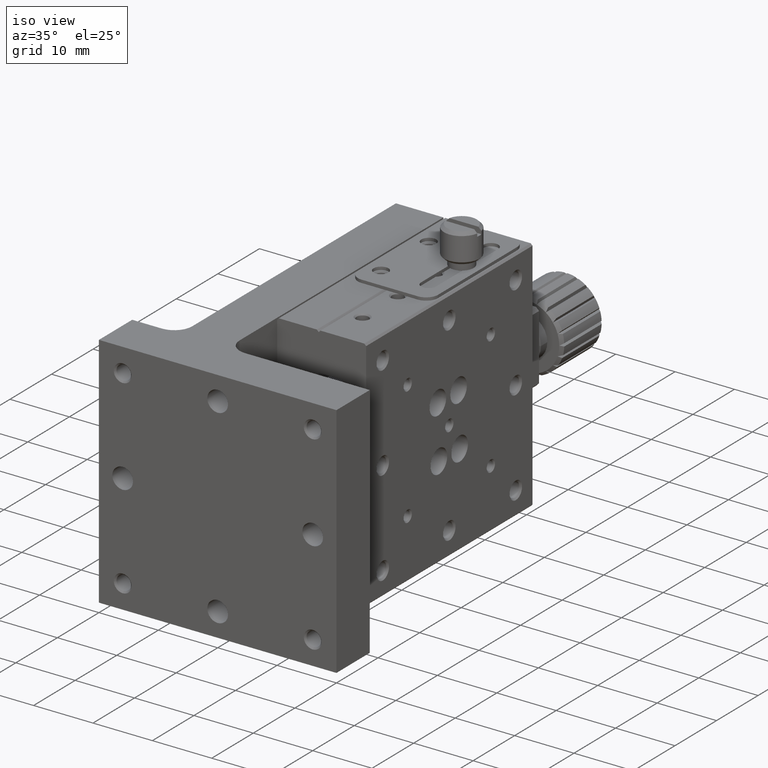
[diagram: clean part render]
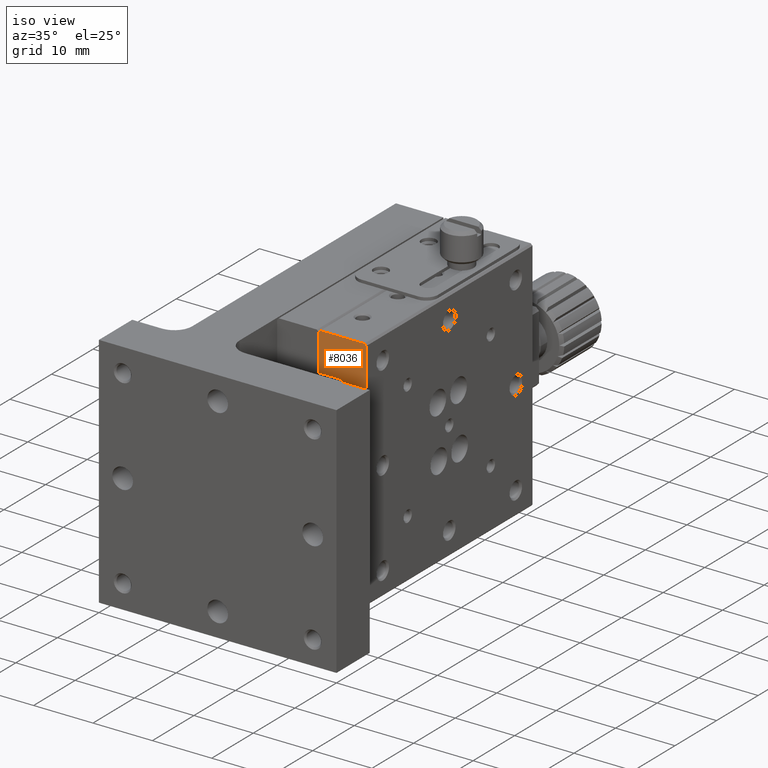
[diagram: same view with one face highlighted and labeled with its STEP entity id]
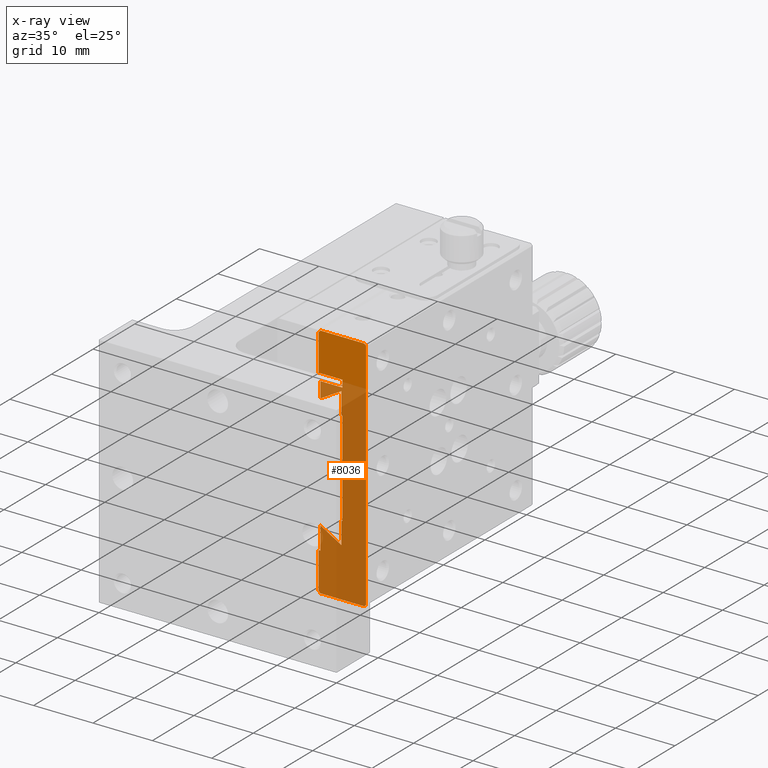
[diagram: x-ray of the same camera — body ghosted, the highlighted face saturated]
A machine part, iso view. The second image highlights one B-rep face of the part: STEP entity #8036.
The next image is the same camera in x-ray: the body ghosted, the highlighted face saturated — about 77% of this face is hidden behind the body in this view.
In plain terms, the highlighted planar face has unit normal (0, -1, 0).
Its self-contained STEP definition (entity closure, byte-faithful):
#23 = ORIENTED_EDGE ( 'NONE', *, *, #4908, .T. ) ;
#66 = VERTEX_POINT ( 'NONE', #1497 ) ;
#71 = CARTESIAN_POINT ( 'NONE',  ( 23.00000000000000000, 19.99999999999999645, 4.898587196589409870E-15 ) ) ;
#97 = LINE ( 'NONE', #1052, #6475 ) ;
#134 = EDGE_CURVE ( 'NONE', #2154, #9276, #6718, .T. ) ;
#180 = DIRECTION ( 'NONE',  ( 0.000000000000000000, 0.000000000000000000, -1.000000000000000000 ) ) ;
#186 = CARTESIAN_POINT ( 'NONE',  ( 26.80000000000001137, 19.99999999999999645, -31.69399999999999196 ) ) ;
#197 = DIRECTION ( 'NONE',  ( 0.000000000000000000, 0.000000000000000000, -1.000000000000000000 ) ) ;
#232 = CARTESIAN_POINT ( 'NONE',  ( 27.00000000000000000, 19.99999999999999645, -11.99999999999999467 ) ) ;
#239 = DIRECTION ( 'NONE',  ( -0.000000000000000000, -0.000000000000000000, -1.000000000000000000 ) ) ;
#257 = CARTESIAN_POINT ( 'NONE',  ( 23.30000000000000782, 19.99999999999999645, -33.49999999999999289 ) ) ;
#286 = LINE ( 'NONE', #4331, #9709 ) ;
#309 = CARTESIAN_POINT ( 'NONE',  ( 26.80000000000000426, 19.99999999999999645, -8.305999999999988503 ) ) ;
#344 = VECTOR ( 'NONE', #5239, 999.9999999999998863 ) ;
#393 = EDGE_CURVE ( 'NONE', #3789, #7237, #5539, .T. ) ;
#515 = DIRECTION ( 'NONE',  ( 0.000000000000000000, 0.000000000000000000, -1.000000000000000000 ) ) ;
#646 = DIRECTION ( 'NONE',  ( -0.7071067811865470176, -0.000000000000000000, 0.7071067811865480168 ) ) ;
#712 = EDGE_CURVE ( 'NONE', #8291, #806, #8954, .T. ) ;
#737 = CARTESIAN_POINT ( 'NONE',  ( 22.99999999999999289, 19.99999999999999645, -39.70000000000000284 ) ) ;
#756 = LINE ( 'NONE', #71, #1780 ) ;
#793 = ORIENTED_EDGE ( 'NONE', *, *, #9767, .T. ) ;
#806 = VERTEX_POINT ( 'NONE', #1158 ) ;
#938 = PLANE ( 'NONE',  #7580 ) ;
#978 = CARTESIAN_POINT ( 'NONE',  ( 23.30000000000000782, 19.99999999999999645, 4.898587196589409870E-15 ) ) ;
#1052 = CARTESIAN_POINT ( 'NONE',  ( 23.30000000000000782, 19.99999999999999645, -8.369289483269090134E-15 ) ) ;
#1089 = VERTEX_POINT ( 'NONE', #7095 ) ;
#1093 = DIRECTION ( 'NONE',  ( 0.000000000000000000, -1.000000000000000000, 0.000000000000000000 ) ) ;
#1158 = CARTESIAN_POINT ( 'NONE',  ( 27.00000000000000000, 19.99999999999999645, -27.99999999999999645 ) ) ;
#1203 = EDGE_CURVE ( 'NONE', #10058, #8235, #4131, .T. ) ;
#1283 = EDGE_CURVE ( 'NONE', #7774, #2154, #2175, .T. ) ;
#1497 = CARTESIAN_POINT ( 'NONE',  ( 30.99999999999999289, 19.99999999999999645, -39.69999999999999574 ) ) ;
#1757 = DIRECTION ( 'NONE',  ( 0.000000000000000000, 0.000000000000000000, -1.000000000000000000 ) ) ;
#1780 = VECTOR ( 'NONE', #180, 1000.000000000000000 ) ;
#1823 = VERTEX_POINT ( 'NONE', #10283 ) ;
#2029 = CARTESIAN_POINT ( 'NONE',  ( 22.99999999999998934, 19.99999999999999645, -39.69999999999999574 ) ) ;
#2120 = VERTEX_POINT ( 'NONE', #8517 ) ;
#2122 = DIRECTION ( 'NONE',  ( 1.000000000000000000, 0.000000000000000000, 0.000000000000000000 ) ) ;
#2154 = VERTEX_POINT ( 'NONE', #8464 ) ;
#2175 = LINE ( 'NONE', #10356, #7629 ) ;
#2304 = VERTEX_POINT ( 'NONE', #7121 ) ;
#2648 = ORIENTED_EDGE ( 'NONE', *, *, #5600, .T. ) ;
#2683 = VECTOR ( 'NONE', #2973, 1000.000000000000000 ) ;
#2709 = EDGE_CURVE ( 'NONE', #6435, #3789, #3008, .T. ) ;
#2723 = FACE_OUTER_BOUND ( 'NONE', #5894, .T. ) ;
#2791 = VECTOR ( 'NONE', #8409, 1000.000000000000000 ) ;
#2973 = DIRECTION ( 'NONE',  ( 0.000000000000000000, 0.000000000000000000, -1.000000000000000000 ) ) ;
#3008 = LINE ( 'NONE', #6224, #7995 ) ;
#3066 = DIRECTION ( 'NONE',  ( -1.000000000000000000, -0.000000000000000000, -0.000000000000000000 ) ) ;
#3212 = ORIENTED_EDGE ( 'NONE', *, *, #4335, .T. ) ;
#3216 = EDGE_CURVE ( 'NONE', #7237, #2304, #97, .T. ) ;
#3315 = VECTOR ( 'NONE', #8539, 1000.000000000000000 ) ;
#3406 = EDGE_CURVE ( 'NONE', #8235, #4358, #8364, .T. ) ;
#3416 = VERTEX_POINT ( 'NONE', #309 ) ;
#3421 = VECTOR ( 'NONE', #4652, 1000.000000000000114 ) ;
#3493 = DIRECTION ( 'NONE',  ( -1.000000000000000000, -0.000000000000000000, -0.000000000000000000 ) ) ;
#3574 = CARTESIAN_POINT ( 'NONE',  ( 23.30000000000000782, 19.99999999999999645, -10.32699999999999463 ) ) ;
#3619 = CARTESIAN_POINT ( 'NONE',  ( 23.30000000000000782, 19.99999999999999645, -7.699999999999994849 ) ) ;
#3629 = VERTEX_POINT ( 'NONE', #4122 ) ;
#3786 = CARTESIAN_POINT ( 'NONE',  ( 30.99999999999999645, 19.99999999999999645, -39.69999999999999574 ) ) ;
#3789 = VERTEX_POINT ( 'NONE', #5233 ) ;
#3906 = EDGE_CURVE ( 'NONE', #2304, #7774, #756, .T. ) ;
#3907 = CARTESIAN_POINT ( 'NONE',  ( 23.30000000000000782, 19.99999999999999645, -8.426049579347532946E-15 ) ) ;
#3914 = ORIENTED_EDGE ( 'NONE', *, *, #3918, .T. ) ;
#3918 = EDGE_CURVE ( 'NONE', #2120, #8587, #7287, .T. ) ;
#4091 = DIRECTION ( 'NONE',  ( 0.000000000000000000, 0.000000000000000000, -1.000000000000000000 ) ) ;
#4119 = VECTOR ( 'NONE', #8923, 1000.000000000000000 ) ;
#4122 = CARTESIAN_POINT ( 'NONE',  ( 26.80000000000001137, 19.99999999999999645, -27.99999999999999645 ) ) ;
#4131 = LINE ( 'NONE', #9793, #3421 ) ;
#4140 = CARTESIAN_POINT ( 'NONE',  ( 23.30000000000000782, 19.99999999999999645, -10.32699999999999463 ) ) ;
#4175 = LINE ( 'NONE', #978, #8072 ) ;
#4242 = LINE ( 'NONE', #9902, #7229 ) ;
#4249 = DIRECTION ( 'NONE',  ( -0.7071067811865470176, -0.000000000000000000, -0.7071067811865480168 ) ) ;
#4271 = ORIENTED_EDGE ( 'NONE', *, *, #134, .T. ) ;
#4331 = CARTESIAN_POINT ( 'NONE',  ( 31.00000000000000000, 19.99999999999999645, -7.699999999999994849 ) ) ;
#4335 = EDGE_CURVE ( 'NONE', #9140, #3416, #9062, .T. ) ;
#4347 = ORIENTED_EDGE ( 'NONE', *, *, #2709, .T. ) ;
#4351 = VECTOR ( 'NONE', #5092, 1000.000000000000000 ) ;
#4358 = VERTEX_POINT ( 'NONE', #257 ) ;
#4402 = ORIENTED_EDGE ( 'NONE', *, *, #3216, .T. ) ;
#4652 = DIRECTION ( 'NONE',  ( -0.8659960399471572368, 0.000000000000000000, 0.5000508562094874154 ) ) ;
#4740 = CARTESIAN_POINT ( 'NONE',  ( 26.80000000000001137, 19.99999999999999645, -11.99999999999999467 ) ) ;
#4776 = ORIENTED_EDGE ( 'NONE', *, *, #1283, .T. ) ;
#4786 = CARTESIAN_POINT ( 'NONE',  ( 27.00000000000000000, 19.99999999999999645, 4.898587196589409870E-15 ) ) ;
#4847 = ORIENTED_EDGE ( 'NONE', *, *, #10081, .T. ) ;
#4869 = VECTOR ( 'NONE', #10302, 1000.000000000000000 ) ;
#4908 = EDGE_CURVE ( 'NONE', #1823, #5034, #6766, .T. ) ;
#4946 = EDGE_CURVE ( 'NONE', #806, #3629, #9641, .T. ) ;
#4988 = CARTESIAN_POINT ( 'NONE',  ( 31.00000000000000000, 19.99999999999999645, 4.898587196589409870E-15 ) ) ;
#4995 = DIRECTION ( 'NONE',  ( 0.8659960399471574588, 0.000000000000000000, 0.5000508562094870824 ) ) ;
#5034 = VERTEX_POINT ( 'NONE', #737 ) ;
#5092 = DIRECTION ( 'NONE',  ( -1.000000000000000000, -0.000000000000000000, -0.000000000000000000 ) ) ;
#5130 = CARTESIAN_POINT ( 'NONE',  ( 27.00000000000000000, 19.99999999999999645, -6.500000000000005329 ) ) ;
#5156 = ORIENTED_EDGE ( 'NONE', *, *, #8244, .T. ) ;
#5233 = CARTESIAN_POINT ( 'NONE',  ( 30.69999999999998863, 19.99999999999999645, -9.333192620541544361E-15 ) ) ;
#5239 = DIRECTION ( 'NONE',  ( 0.7071067811865510144, -0.000000000000000000, -0.7071067811865441310 ) ) ;
#5296 = ORIENTED_EDGE ( 'NONE', *, *, #4946, .T. ) ;
#5407 = VECTOR ( 'NONE', #239, 1000.000000000000000 ) ;
#5516 = DIRECTION ( 'NONE',  ( -1.000000000000000000, -0.000000000000000000, -0.000000000000000000 ) ) ;
#5539 = LINE ( 'NONE', #8863, #5921 ) ;
#5600 = EDGE_CURVE ( 'NONE', #9276, #9135, #286, .T. ) ;
#5894 = EDGE_LOOP ( 'NONE', ( #9119, #4347, #9504, #4402, #7929, #4776, #4271, #2648, #8646, #3212, #8333, #9557, #7754, #5296, #793, #7206, #8467, #8488, #23, #5156, #3914, #4847 ) ) ;
#5921 = VECTOR ( 'NONE', #3066, 1000.000000000000000 ) ;
#5928 = VECTOR ( 'NONE', #4091, 1000.000000000000000 ) ;
#6188 = EDGE_CURVE ( 'NONE', #66, #6435, #7703, .T. ) ;
#6224 = CARTESIAN_POINT ( 'NONE',  ( 31.00000000000000000, 19.99999999999999645, -0.3000000000000211942 ) ) ;
#6231 = CARTESIAN_POINT ( 'NONE',  ( 30.69999999999998508, 19.99999999999999645, -39.99999999999999289 ) ) ;
#6298 = CARTESIAN_POINT ( 'NONE',  ( 27.00000000000000000, 19.99999999999999645, -7.699999999999994849 ) ) ;
#6435 = VERTEX_POINT ( 'NONE', #7379 ) ;
#6475 = VECTOR ( 'NONE', #4249, 1000.000000000000000 ) ;
#6673 = CARTESIAN_POINT ( 'NONE',  ( 23.30000000000000782, 19.99999999999999645, -33.49999999999999289 ) ) ;
#6675 = DIRECTION ( 'NONE',  ( 0.000000000000000000, 0.000000000000000000, -1.000000000000000000 ) ) ;
#6718 = LINE ( 'NONE', #5130, #5407 ) ;
#6766 = LINE ( 'NONE', #9198, #2791 ) ;
#6823 = CARTESIAN_POINT ( 'NONE',  ( 23.30000000000000426, 19.99999999999999645, -29.67300000000000182 ) ) ;
#6940 = CARTESIAN_POINT ( 'NONE',  ( 23.00000000000000000, 19.99999999999999645, -6.500000000000005329 ) ) ;
#7055 = CARTESIAN_POINT ( 'NONE',  ( 27.00000000000000000, 19.99999999999999645, -27.99999999999999645 ) ) ;
#7095 = CARTESIAN_POINT ( 'NONE',  ( 26.80000000000001137, 19.99999999999999645, -11.99999999999999467 ) ) ;
#7121 = CARTESIAN_POINT ( 'NONE',  ( 23.00000000000000000, 19.99999999999999645, -0.3000000000000199174 ) ) ;
#7206 = ORIENTED_EDGE ( 'NONE', *, *, #1203, .T. ) ;
#7229 = VECTOR ( 'NONE', #197, 1000.000000000000000 ) ;
#7237 = VERTEX_POINT ( 'NONE', #3907 ) ;
#7287 = LINE ( 'NONE', #8190, #4119 ) ;
#7379 = CARTESIAN_POINT ( 'NONE',  ( 30.99999999999999645, 19.99999999999999645, -0.3000000000000154210 ) ) ;
#7508 = VECTOR ( 'NONE', #515, 1000.000000000000000 ) ;
#7580 = AXIS2_PLACEMENT_3D ( 'NONE', #4988, #1093, #6675 ) ;
#7629 = VECTOR ( 'NONE', #2122, 1000.000000000000000 ) ;
#7663 = LINE ( 'NONE', #6231, #10436 ) ;
#7703 = LINE ( 'NONE', #3786, #3315 ) ;
#7754 = ORIENTED_EDGE ( 'NONE', *, *, #712, .T. ) ;
#7774 = VERTEX_POINT ( 'NONE', #6940 ) ;
#7929 = ORIENTED_EDGE ( 'NONE', *, *, #3906, .T. ) ;
#7973 = LINE ( 'NONE', #4740, #4869 ) ;
#7995 = VECTOR ( 'NONE', #646, 1000.000000000000000 ) ;
#8023 = EDGE_CURVE ( 'NONE', #3416, #1089, #4242, .T. ) ;
#8036 = ADVANCED_FACE ( 'NONE', ( #2723 ), #938, .T. ) ;
#8072 = VECTOR ( 'NONE', #1757, 1000.000000000000000 ) ;
#8190 = CARTESIAN_POINT ( 'NONE',  ( 31.00000000000000000, 19.99999999999999645, -39.99999999999999289 ) ) ;
#8235 = VERTEX_POINT ( 'NONE', #6823 ) ;
#8244 = EDGE_CURVE ( 'NONE', #5034, #2120, #9260, .T. ) ;
#8291 = VERTEX_POINT ( 'NONE', #232 ) ;
#8333 = ORIENTED_EDGE ( 'NONE', *, *, #8023, .T. ) ;
#8356 = LINE ( 'NONE', #6673, #4351 ) ;
#8364 = LINE ( 'NONE', #10117, #7508 ) ;
#8409 = DIRECTION ( 'NONE',  ( 0.000000000000000000, 0.000000000000000000, -1.000000000000000000 ) ) ;
#8464 = CARTESIAN_POINT ( 'NONE',  ( 27.00000000000000000, 19.99999999999999645, -6.500000000000005329 ) ) ;
#8467 = ORIENTED_EDGE ( 'NONE', *, *, #3406, .T. ) ;
#8488 = ORIENTED_EDGE ( 'NONE', *, *, #9552, .T. ) ;
#8517 = CARTESIAN_POINT ( 'NONE',  ( 23.30000000000000426, 19.99999999999999645, -40.00000000000000000 ) ) ;
#8539 = DIRECTION ( 'NONE',  ( 1.230518249841690057E-16, 0.000000000000000000, 1.000000000000000000 ) ) ;
#8562 = CARTESIAN_POINT ( 'NONE',  ( 26.80000000000001137, 19.99999999999999645, 4.898587196589409870E-15 ) ) ;
#8587 = VERTEX_POINT ( 'NONE', #8911 ) ;
#8602 = DIRECTION ( 'NONE',  ( 0.7071067811865680008, 0.000000000000000000, 0.7071067811865270336 ) ) ;
#8646 = ORIENTED_EDGE ( 'NONE', *, *, #9988, .T. ) ;
#8863 = CARTESIAN_POINT ( 'NONE',  ( 31.00000000000000000, 19.99999999999999645, -9.250251154346389072E-15 ) ) ;
#8911 = CARTESIAN_POINT ( 'NONE',  ( 30.69999999999998508, 19.99999999999999645, -39.99999999999999289 ) ) ;
#8923 = DIRECTION ( 'NONE',  ( 1.000000000000000000, 0.000000000000000000, 0.000000000000000000 ) ) ;
#8954 = LINE ( 'NONE', #4786, #5928 ) ;
#9033 = VECTOR ( 'NONE', #4995, 1000.000000000000114 ) ;
#9062 = LINE ( 'NONE', #4140, #9033 ) ;
#9119 = ORIENTED_EDGE ( 'NONE', *, *, #6188, .T. ) ;
#9135 = VERTEX_POINT ( 'NONE', #3619 ) ;
#9140 = VERTEX_POINT ( 'NONE', #3574 ) ;
#9198 = CARTESIAN_POINT ( 'NONE',  ( 23.00000000000000000, 19.99999999999999645, 4.898587196589409870E-15 ) ) ;
#9260 = LINE ( 'NONE', #2029, #344 ) ;
#9276 = VERTEX_POINT ( 'NONE', #6298 ) ;
#9504 = ORIENTED_EDGE ( 'NONE', *, *, #393, .T. ) ;
#9552 = EDGE_CURVE ( 'NONE', #4358, #1823, #8356, .T. ) ;
#9557 = ORIENTED_EDGE ( 'NONE', *, *, #10253, .T. ) ;
#9641 = LINE ( 'NONE', #7055, #10401 ) ;
#9709 = VECTOR ( 'NONE', #3493, 1000.000000000000000 ) ;
#9767 = EDGE_CURVE ( 'NONE', #3629, #10058, #10208, .T. ) ;
#9793 = CARTESIAN_POINT ( 'NONE',  ( 26.80000000000001137, 19.99999999999999645, -31.69399999999999196 ) ) ;
#9902 = CARTESIAN_POINT ( 'NONE',  ( 26.80000000000001137, 19.99999999999999645, 4.898587196589409870E-15 ) ) ;
#9988 = EDGE_CURVE ( 'NONE', #9135, #9140, #4175, .T. ) ;
#10058 = VERTEX_POINT ( 'NONE', #186 ) ;
#10081 = EDGE_CURVE ( 'NONE', #8587, #66, #7663, .T. ) ;
#10117 = CARTESIAN_POINT ( 'NONE',  ( 23.30000000000000782, 19.99999999999999645, 4.898587196589409870E-15 ) ) ;
#10208 = LINE ( 'NONE', #8562, #2683 ) ;
#10253 = EDGE_CURVE ( 'NONE', #1089, #8291, #7973, .T. ) ;
#10283 = CARTESIAN_POINT ( 'NONE',  ( 23.00000000000000000, 19.99999999999999645, -33.49999999999999289 ) ) ;
#10302 = DIRECTION ( 'NONE',  ( 1.000000000000000000, 0.000000000000000000, 0.000000000000000000 ) ) ;
#10356 = CARTESIAN_POINT ( 'NONE',  ( 31.00000000000000000, 19.99999999999999645, -6.500000000000005329 ) ) ;
#10401 = VECTOR ( 'NONE', #5516, 1000.000000000000000 ) ;
#10436 = VECTOR ( 'NONE', #8602, 1000.000000000000114 ) ;